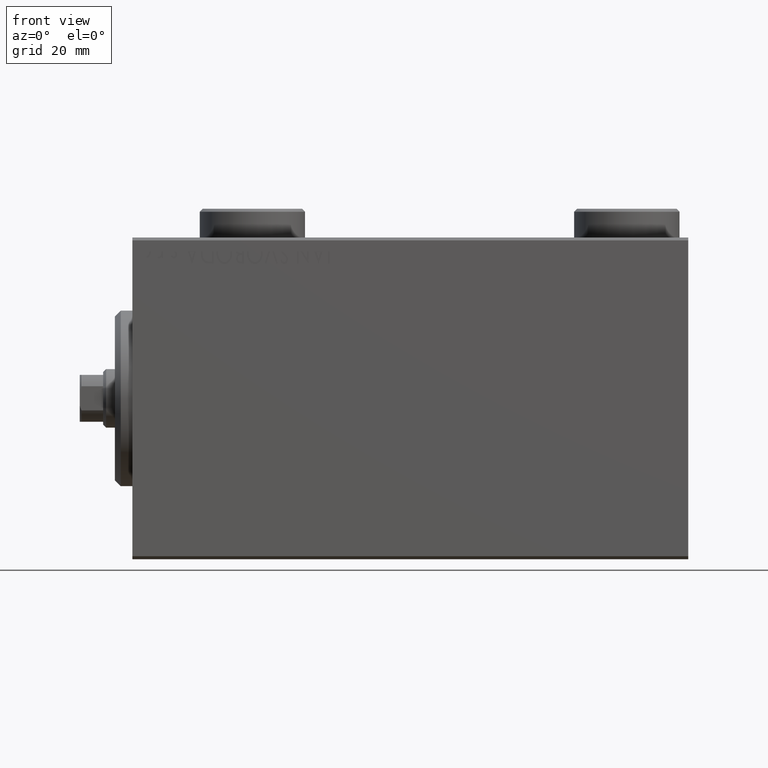
[diagram: clean part render]
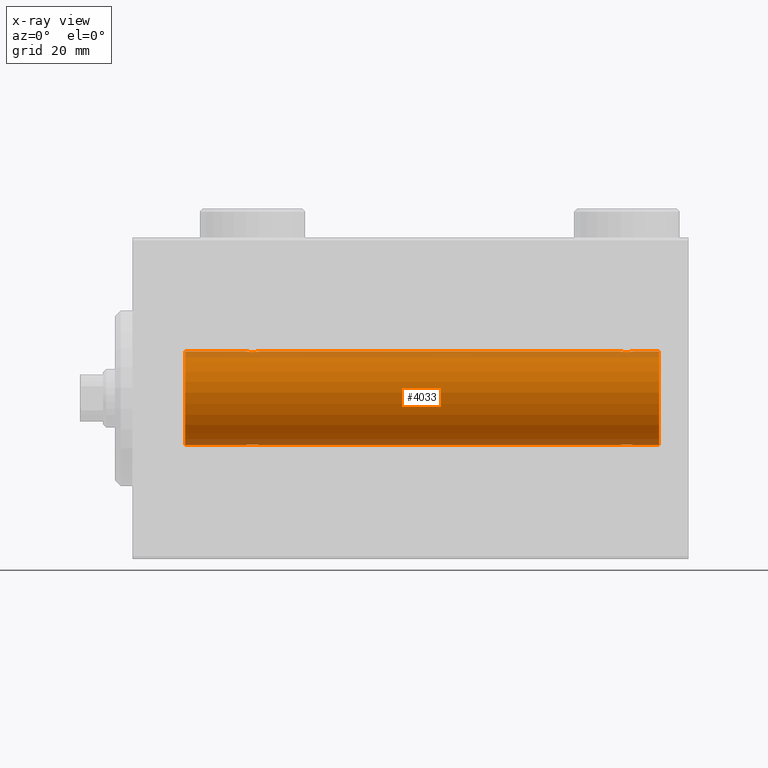
[diagram: x-ray — body ghosted, one internal face saturated and labeled with its STEP entity id]
A machine part, front view, then the same camera in x-ray: the body is ghosted and one INTERNAL B-rep face — a face not visible from any outside direction — is saturated and labeled: STEP entity #4033.
In plain terms, the highlighted cylindrical surface (partial cylindrical patch) has radius 8 mm, axis along (-1, -0, -0).
Its self-contained STEP definition (entity closure, byte-faithful):
#187 = CARTESIAN_POINT ( 'NONE',  ( 83.25000000000001421, -1.281062335743637805E-14, -7.999999999999998224 ) ) ;
#345 = DIRECTION ( 'NONE',  ( -1.000000000000000000, 0.000000000000000000, 0.000000000000000000 ) ) ;
#727 = DIRECTION ( 'NONE',  ( -1.000000000000000000, 0.000000000000000000, 0.000000000000000000 ) ) ;
#1006 = EDGE_CURVE ( 'NONE', #32986, #5718, #42432, .T. ) ;
#1489 = CARTESIAN_POINT ( 'NONE',  ( 83.25000000000001421, -4.052102368803510290E-23, 7.999999999999998224 ) ) ;
#1546 = CARTESIAN_POINT ( 'NONE',  ( 21.59250917855269591, -0.6288424646912638138, -7.976670562295706368 ) ) ;
#1599 = ORIENTED_EDGE ( 'NONE', *, *, #25995, .T. ) ;
#1867 = CARTESIAN_POINT ( 'NONE',  ( 20.66440551148902571, -1.250104850332074857, 7.901723728054485640 ) ) ;
#2011 = CARTESIAN_POINT ( 'NONE',  ( 20.17298283628253586, -1.217515856520240192, -7.907063872927300174 ) ) ;
#2559 = CARTESIAN_POINT ( 'NONE',  ( 19.25000000000000000, -4.052102368803510290E-23, 7.999999999999998224 ) ) ;
#2659 = CARTESIAN_POINT ( 'NONE',  ( 90.00000000000000000, 9.797174393178821713E-16, -7.999999999999998224 ) ) ;
#2743 = EDGE_LOOP ( 'NONE', ( #37913, #35891, #20205, #1599, #32810, #21557, #3420, #13287, #17884, #14188, #25471, #3619 ) ) ;
#3073 = CARTESIAN_POINT ( 'NONE',  ( 9.000000000000007105, 0.000000000000000000, 7.999999999999998224 ) ) ;
#3420 = ORIENTED_EDGE ( 'NONE', *, *, #1006, .T. ) ;
#3619 = ORIENTED_EDGE ( 'NONE', *, *, #12068, .F. ) ;
#3652 = CARTESIAN_POINT ( 'NONE',  ( 84.17298283628255717, -1.217515856520248185, -7.907063872927295733 ) ) ;
#4033 = ADVANCED_FACE ( 'NONE', ( #25387 ), #38941, .F. ) ;
#4158 = VECTOR ( 'NONE', #23268, 1000.000000000000000 ) ;
#4630 = LINE ( 'NONE', #36379, #45259 ) ;
#5454 = CARTESIAN_POINT ( 'NONE',  ( 20.33559448851097784, -1.250104850332075968, -7.901723728054487417 ) ) ;
#5718 = VERTEX_POINT ( 'NONE', #3073 ) ;
#6233 = CARTESIAN_POINT ( 'NONE',  ( 19.73732994206310565, -0.9937204387496724189, 7.938174152191988853 ) ) ;
#7106 = CARTESIAN_POINT ( 'NONE',  ( 84.33559448851100626, -1.250104850332087736, -7.901723728054487417 ) ) ;
#7322 = CARTESIAN_POINT ( 'NONE',  ( 83.73184514123552447, -0.9994562523959241718, -7.938165420771274405 ) ) ;
#7605 = VECTOR ( 'NONE', #9806, 1000.000000000000000 ) ;
#8388 = CARTESIAN_POINT ( 'NONE',  ( 85.49841755665747201, -0.7695044314719103884, 7.963745725343517101 ) ) ;
#8407 = LINE ( 'NONE', #22423, #18926 ) ;
#8681 = CIRCLE ( 'NONE', #38079, 7.999999999999998224 ) ;
#8703 = VERTEX_POINT ( 'NONE', #24737 ) ;
#8971 = CARTESIAN_POINT ( 'NONE',  ( 85.75000000000002842, -0.1632520343443080724, -8.000000000000000000 ) ) ;
#9547 = LINE ( 'NONE', #2659, #34250 ) ;
#9806 = DIRECTION ( 'NONE',  ( -1.000000000000000000, -0.000000000000000000, -0.000000000000000000 ) ) ;
#9824 = CARTESIAN_POINT ( 'NONE',  ( 19.28333392022814152, -0.3297258132310492140, -7.994620111903502746 ) ) ;
#10704 = VERTEX_POINT ( 'NONE', #1489 ) ;
#10823 = B_SPLINE_CURVE_WITH_KNOTS ( 'NONE', 3,
 ( #2559, #19340, #37748, #36839, #16590, #30628, #6233, #20254, #34305, #16817, #33383, #1867, #43967, #13808, #45338, #20922, #42317, #27851, #31517, #28291 ),
 .UNSPECIFIED., .F., .F.,
 ( 4, 2, 2, 2, 2, 2, 2, 2, 2, 4 ),
 ( 0.003914068143704996401, 0.004403205918210112424, 0.004892343692715227579, 0.005136912579967786024, 0.005381481467220344470, 0.005870619241725459625, 0.006359757016230574780, 0.006848894790735689936, 0.007338032565240806826, 0.007827170339745921981 ),
 .UNSPECIFIED. ) ;
#11138 = VERTEX_POINT ( 'NONE', #34108 ) ;
#11825 = CARTESIAN_POINT ( 'NONE',  ( 85.75000000000001421, 3.911328967333206588E-16, 7.999999999999998224 ) ) ;
#12068 = EDGE_CURVE ( 'NONE', #40015, #13301, #41451, .T. ) ;
#12087 = CARTESIAN_POINT ( 'NONE',  ( 90.00000000000000000, 9.797174393178821713E-16, -7.999999999999998224 ) ) ;
#12359 = CARTESIAN_POINT ( 'NONE',  ( 21.05544625654723845, -1.122809931695431862, -7.920878051565288125 ) ) ;
#12419 = CARTESIAN_POINT ( 'NONE',  ( 85.12714162834988940, -1.084361243153331822, -7.926301147147067461 ) ) ;
#12581 = CARTESIAN_POINT ( 'NONE',  ( 19.25000000000000711, -3.005725159293897818E-15, -7.999999999999998224 ) ) ;
#12646 = EDGE_CURVE ( 'NONE', #22246, #8703, #44772, .T. ) ;
#12738 = CARTESIAN_POINT ( 'NONE',  ( 85.12943792732231429, -1.092287957405120080, 7.925333492638530153 ) ) ;
#12923 = CARTESIAN_POINT ( 'NONE',  ( 9.000000000000007105, 9.797174393178821713E-16, -7.999999999999998224 ) ) ;
#13287 = ORIENTED_EDGE ( 'NONE', *, *, #42043, .F. ) ;
#13301 = VERTEX_POINT ( 'NONE', #28955 ) ;
#13808 = CARTESIAN_POINT ( 'NONE',  ( 21.12943792732230008, -1.092287957405117416, 7.925333492638531929 ) ) ;
#14188 = ORIENTED_EDGE ( 'NONE', *, *, #30277, .F. ) ;
#14382 = DIRECTION ( 'NONE',  ( 0.000000000000000000, 0.000000000000000000, 1.000000000000000000 ) ) ;
#14620 = CARTESIAN_POINT ( 'NONE',  ( 83.25000000000001421, -1.281062335743637805E-14, -7.999999999999998224 ) ) ;
#15358 = CARTESIAN_POINT ( 'NONE',  ( 20.66599605016009278, -1.249894643705219854, -7.901756981264364654 ) ) ;
#15507 = CARTESIAN_POINT ( 'NONE',  ( 83.25000000000002842, -0.1632520343443087940, 8.000000000000000000 ) ) ;
#15579 = CARTESIAN_POINT ( 'NONE',  ( 21.75000000000000355, 9.797173987965608855E-16, -7.999999999999998224 ) ) ;
#16048 = CARTESIAN_POINT ( 'NONE',  ( 19.73184514123549604, -0.9994562523959141798, -7.938165420771276182 ) ) ;
#16380 = DIRECTION ( 'NONE',  ( -1.000000000000000000, -0.000000000000000000, -0.000000000000000000 ) ) ;
#16504 = CARTESIAN_POINT ( 'NONE',  ( 19.50158244334252444, -0.7695044314719095002, -7.963745725343515325 ) ) ;
#16590 = CARTESIAN_POINT ( 'NONE',  ( 19.50041313324086900, -0.7680324342712184782, 7.963892330120037499 ) ) ;
#16737 = CARTESIAN_POINT ( 'NONE',  ( 19.25000000000000355, -0.1654128203352905058, -8.000000000000000000 ) ) ;
#16817 = CARTESIAN_POINT ( 'NONE',  ( 20.17169333885885862, -1.217212176555599212, 7.907113222863028312 ) ) ;
#17884 = ORIENTED_EDGE ( 'NONE', *, *, #39741, .T. ) ;
#18414 = AXIS2_PLACEMENT_3D ( 'NONE', #39405, #39857, #42624 ) ;
#18926 = VECTOR ( 'NONE', #28551, 1000.000000000000000 ) ;
#19340 = CARTESIAN_POINT ( 'NONE',  ( 19.25000000000000355, -0.1632520343443084887, 7.999999999999996447 ) ) ;
#19673 = AXIS2_PLACEMENT_3D ( 'NONE', #32253, #727, #42833 ) ;
#19917 = LINE ( 'NONE', #27302, #7605 ) ;
#20205 = ORIENTED_EDGE ( 'NONE', *, *, #43866, .T. ) ;
#20233 = CARTESIAN_POINT ( 'NONE',  ( 85.26267005793692988, -0.9937204387496844094, -7.938174152191990629 ) ) ;
#20254 = CARTESIAN_POINT ( 'NONE',  ( 19.87285837165014968, -1.084361243153318943, 7.926301147147065684 ) ) ;
#20720 = CARTESIAN_POINT ( 'NONE',  ( 90.00000000000000000, 0.000000000000000000, 7.999999999999998224 ) ) ;
#20905 = CARTESIAN_POINT ( 'NONE',  ( 83.87056207267774255, -1.092287957405127408, -7.925333492638528377 ) ) ;
#20922 = CARTESIAN_POINT ( 'NONE',  ( 21.49841755665747911, -0.7695044314719062806, 7.963745725343515325 ) ) ;
#20972 = CARTESIAN_POINT ( 'NONE',  ( 19.25000000000000000, -4.052102368803510290E-23, 7.999999999999998224 ) ) ;
#21557 = ORIENTED_EDGE ( 'NONE', *, *, #27273, .T. ) ;
#22246 = VERTEX_POINT ( 'NONE', #45221 ) ;
#22252 = CARTESIAN_POINT ( 'NONE',  ( 21.71715712019487299, -0.3279446529214868344, -7.994696267489722175 ) ) ;
#22406 = CARTESIAN_POINT ( 'NONE',  ( 83.94455374345278642, -1.122809931695436525, 7.920878051565288125 ) ) ;
#22423 = CARTESIAN_POINT ( 'NONE',  ( 90.00000000000000000, 0.000000000000000000, 7.999999999999998224 ) ) ;
#22731 = CARTESIAN_POINT ( 'NONE',  ( 90.00000000000000000, 0.000000000000000000, 7.999999999999998224 ) ) ;
#22851 = CARTESIAN_POINT ( 'NONE',  ( 83.28284287980511635, -0.3279446529214926076, 7.994696267489720398 ) ) ;
#22930 = CARTESIAN_POINT ( 'NONE',  ( 20.82830666114115559, -1.217212176555599656, -7.907113222863030089 ) ) ;
#22994 = CARTESIAN_POINT ( 'NONE',  ( 85.32687899779146790, -0.9409612394163503479, -7.944680966683013601 ) ) ;
#23268 = DIRECTION ( 'NONE',  ( -1.000000000000000000, -0.000000000000000000, -0.000000000000000000 ) ) ;
#23320 = CARTESIAN_POINT ( 'NONE',  ( 84.17169333885888705, -1.217212176555603431, 7.907113222863028312 ) ) ;
#24150 = CARTESIAN_POINT ( 'NONE',  ( 83.40834966532099770, -0.6303134207468096273, -7.976551562999471656 ) ) ;
#24737 = CARTESIAN_POINT ( 'NONE',  ( 19.25000000000000711, -3.005725159293897818E-15, -7.999999999999998224 ) ) ;
#25367 = VERTEX_POINT ( 'NONE', #12087 ) ;
#25387 = FACE_OUTER_BOUND ( 'NONE', #2743, .T. ) ;
#25471 = ORIENTED_EDGE ( 'NONE', *, *, #36609, .T. ) ;
#25516 = EDGE_CURVE ( 'NONE', #25367, #40403, #9547, .T. ) ;
#25872 = CARTESIAN_POINT ( 'NONE',  ( 85.71666607977185492, -0.3297258132310503798, 7.994620111903502746 ) ) ;
#25950 = CARTESIAN_POINT ( 'NONE',  ( 21.32687899779140750, -0.9409612394163507920, -7.944680966683015377 ) ) ;
#25995 = EDGE_CURVE ( 'NONE', #43027, #22246, #4630, .T. ) ;
#26459 = CARTESIAN_POINT ( 'NONE',  ( 84.82830666114118401, -1.217212176555607872, -7.907113222863028312 ) ) ;
#26786 = CARTESIAN_POINT ( 'NONE',  ( 85.59165033467900230, -0.6303134207467984140, 7.976551562999471656 ) ) ;
#26929 = CARTESIAN_POINT ( 'NONE',  ( 85.71715712019491207, -0.3279446529214858908, -7.994696267489723951 ) ) ;
#27273 = EDGE_CURVE ( 'NONE', #8703, #32986, #44681, .T. ) ;
#27302 = CARTESIAN_POINT ( 'NONE',  ( 90.00000000000000000, 0.000000000000000000, 7.999999999999998224 ) ) ;
#27502 = DIRECTION ( 'NONE',  ( -1.000000000000000000, -0.000000000000000000, -0.000000000000000000 ) ) ;
#27851 = CARTESIAN_POINT ( 'NONE',  ( 21.71666607977186914, -0.3297258132310459389, 7.994620111903502746 ) ) ;
#28049 = CARTESIAN_POINT ( 'NONE',  ( 83.28333392022817350, -0.3297258132310616485, -7.994620111903504522 ) ) ;
#28291 = CARTESIAN_POINT ( 'NONE',  ( 21.75000000000000355, 3.487662501604947668E-15, 7.999999999999998224 ) ) ;
#28551 = DIRECTION ( 'NONE',  ( -1.000000000000000000, -0.000000000000000000, -0.000000000000000000 ) ) ;
#28955 = CARTESIAN_POINT ( 'NONE',  ( 85.75000000000001421, 3.911328967333206588E-16, 7.999999999999998224 ) ) ;
#29399 = CARTESIAN_POINT ( 'NONE',  ( 19.87056207267771413, -1.092287957405119192, -7.925333492638526600 ) ) ;
#29552 = CARTESIAN_POINT ( 'NONE',  ( 83.87285837165021007, -1.084361243153323828, 7.926301147147069237 ) ) ;
#29622 = B_SPLINE_CURVE_WITH_KNOTS ( 'NONE', 3,
 ( #40122, #15507, #22851, #43807, #36459, #30235, #44264, #29552, #22406, #23320, #43577, #32777, #44030, #12738, #39893, #8388, #26786, #25872, #37359, #11825 ),
 .UNSPECIFIED., .F., .F.,
 ( 4, 2, 2, 2, 2, 2, 2, 2, 2, 4 ),
 ( 0.003914068143704953900, 0.004403205918210113291, 0.004892343692715272682, 0.005136912579967838066, 0.005381481467220402583, 0.005870619241725494319, 0.006359757016230586923, 0.006848894790735679527, 0.007338032565240771264, 0.007827170339745863001 ),
 .UNSPECIFIED. ) ;
#29921 = CARTESIAN_POINT ( 'NONE',  ( 85.75000000000001421, 9.797173987969553159E-16, -7.999999999999998224 ) ) ;
#30085 = CARTESIAN_POINT ( 'NONE',  ( 19.40834966532099415, -0.6303134207467953054, -7.976551562999473433 ) ) ;
#30235 = CARTESIAN_POINT ( 'NONE',  ( 83.67312100220861737, -0.9409612394163542337, 7.944680966683010936 ) ) ;
#30277 = EDGE_CURVE ( 'NONE', #10704, #11138, #8407, .T. ) ;
#30628 = CARTESIAN_POINT ( 'NONE',  ( 19.67312100220859605, -0.9409612394163519022, 7.944680966683015377 ) ) ;
#31036 = VECTOR ( 'NONE', #16380, 1000.000000000000000 ) ;
#31500 = CARTESIAN_POINT ( 'NONE',  ( 84.66599605016014607, -1.249894643705230513, -7.901756981264362878 ) ) ;
#31517 = CARTESIAN_POINT ( 'NONE',  ( 21.75000000000001776, -0.1654128203352905613, 8.000000000000000000 ) ) ;
#31872 = CARTESIAN_POINT ( 'NONE',  ( 90.00000000000000000, 0.000000000000000000, 0.000000000000000000 ) ) ;
#32253 = CARTESIAN_POINT ( 'NONE',  ( 9.000000000000007105, 0.000000000000000000, 0.000000000000000000 ) ) ;
#32423 = EDGE_CURVE ( 'NONE', #25367, #40015, #8681, .T. ) ;
#32777 = CARTESIAN_POINT ( 'NONE',  ( 84.66440551148903637, -1.250104850332079520, 7.901723728054485640 ) ) ;
#32810 = ORIENTED_EDGE ( 'NONE', *, *, #12646, .T. ) ;
#32845 = CARTESIAN_POINT ( 'NONE',  ( 21.12714162834985387, -1.084361243153318943, -7.926301147147063908 ) ) ;
#32986 = VERTEX_POINT ( 'NONE', #12923 ) ;
#33141 = DIRECTION ( 'NONE',  ( -1.000000000000000000, -0.000000000000000000, -0.000000000000000000 ) ) ;
#33297 = CARTESIAN_POINT ( 'NONE',  ( 21.75000000000000355, -0.1632520343443067123, -8.000000000000000000 ) ) ;
#33383 = CARTESIAN_POINT ( 'NONE',  ( 20.33400394983991788, -1.249894643705220076, 7.901756981264366431 ) ) ;
#34108 = CARTESIAN_POINT ( 'NONE',  ( 21.75000000000000355, 3.487662501604947668E-15, 7.999999999999998224 ) ) ;
#34250 = VECTOR ( 'NONE', #27502, 1000.000000000000000 ) ;
#34283 = CARTESIAN_POINT ( 'NONE',  ( 85.05544625654725621, -1.122809931695437857, -7.920878051565288125 ) ) ;
#34305 = CARTESIAN_POINT ( 'NONE',  ( 19.94455374345276510, -1.122809931695431640, 7.920878051565289901 ) ) ;
#34527 = CARTESIAN_POINT ( 'NONE',  ( 85.75000000000001421, 9.797173987969553159E-16, -7.999999999999998224 ) ) ;
#35891 = ORIENTED_EDGE ( 'NONE', *, *, #25516, .T. ) ;
#36305 = CARTESIAN_POINT ( 'NONE',  ( 21.49958686675913100, -0.7680324342712171459, -7.963892330120037499 ) ) ;
#36379 = CARTESIAN_POINT ( 'NONE',  ( 90.00000000000000000, 9.797174393178821713E-16, -7.999999999999998224 ) ) ;
#36459 = CARTESIAN_POINT ( 'NONE',  ( 83.50041313324088321, -0.7680324342712208097, 7.963892330120035723 ) ) ;
#36609 = EDGE_CURVE ( 'NONE', #10704, #13301, #29622, .T. ) ;
#36839 = CARTESIAN_POINT ( 'NONE',  ( 19.40749082144729698, -0.6288424646912655902, 7.976670562295706368 ) ) ;
#37359 = CARTESIAN_POINT ( 'NONE',  ( 85.75000000000000000, -0.1654128203352892290, 7.999999999999998224 ) ) ;
#37725 = CARTESIAN_POINT ( 'NONE',  ( 85.59250917855273144, -0.6288424646912652571, -7.976670562295706368 ) ) ;
#37748 = CARTESIAN_POINT ( 'NONE',  ( 19.28284287980511991, -0.3279446529214884443, 7.994696267489723951 ) ) ;
#37913 = ORIENTED_EDGE ( 'NONE', *, *, #32423, .F. ) ;
#38079 = AXIS2_PLACEMENT_3D ( 'NONE', #31872, #345, #14382 ) ;
#38214 = CARTESIAN_POINT ( 'NONE',  ( 90.00000000000000000, 9.797174393178821713E-16, -7.999999999999998224 ) ) ;
#38700 = VERTEX_POINT ( 'NONE', #20972 ) ;
#38838 = CARTESIAN_POINT ( 'NONE',  ( 83.25000000000000000, -0.1654128203353024129, -8.000000000000001776 ) ) ;
#38941 = CYLINDRICAL_SURFACE ( 'NONE', #18414, 7.999999999999998224 ) ;
#39405 = CARTESIAN_POINT ( 'NONE',  ( 90.00000000000000000, 0.000000000000000000, 0.000000000000000000 ) ) ;
#39741 = EDGE_CURVE ( 'NONE', #38700, #11138, #10823, .T. ) ;
#39857 = DIRECTION ( 'NONE',  ( -1.000000000000000000, -0.000000000000000000, -0.000000000000000000 ) ) ;
#39893 = CARTESIAN_POINT ( 'NONE',  ( 85.26815485876457501, -0.9994562523959159561, 7.938165420771274405 ) ) ;
#40015 = VERTEX_POINT ( 'NONE', #22731 ) ;
#40122 = CARTESIAN_POINT ( 'NONE',  ( 83.25000000000001421, -4.052102368803510290E-23, 7.999999999999998224 ) ) ;
#40403 = VERTEX_POINT ( 'NONE', #34527 ) ;
#41207 = B_SPLINE_CURVE_WITH_KNOTS ( 'NONE', 3,
 ( #29921, #8971, #26929, #37725, #43946, #22994, #20233, #12419, #34283, #26459, #31500, #7106, #3652, #20905, #7322, #42070, #24150, #28049, #38838, #187 ),
 .UNSPECIFIED., .F., .F.,
 ( 4, 2, 2, 2, 2, 2, 2, 2, 2, 4 ),
 ( 0.003914068143704947829, 0.004403205918210037831, 0.004892343692715126965, 0.005136912579967671533, 0.005381481467220216967, 0.005870619241725345133, 0.006359757016230473299, 0.006848894790735601465, 0.007338032565240729631, 0.007827170339745857797 ),
 .UNSPECIFIED. ) ;
#41451 = LINE ( 'NONE', #20720, #31036 ) ;
#42043 = EDGE_CURVE ( 'NONE', #38700, #5718, #19917, .T. ) ;
#42070 = CARTESIAN_POINT ( 'NONE',  ( 83.50158244334251378, -0.7695044314719187151, -7.963745725343513548 ) ) ;
#42317 = CARTESIAN_POINT ( 'NONE',  ( 21.59165033467900585, -0.6303134207467925298, 7.976551562999473433 ) ) ;
#42432 = CIRCLE ( 'NONE', #19673, 7.999999999999998224 ) ;
#42624 = DIRECTION ( 'NONE',  ( 0.000000000000000000, 0.000000000000000000, 1.000000000000000000 ) ) ;
#42833 = DIRECTION ( 'NONE',  ( 0.000000000000000000, 0.000000000000000000, 1.000000000000000000 ) ) ;
#43027 = VERTEX_POINT ( 'NONE', #14620 ) ;
#43577 = CARTESIAN_POINT ( 'NONE',  ( 84.33400394983991077, -1.249894643705222519, 7.901756981264366431 ) ) ;
#43807 = CARTESIAN_POINT ( 'NONE',  ( 83.40749082144732540, -0.6288424646912691429, 7.976670562295706368 ) ) ;
#43866 = EDGE_CURVE ( 'NONE', #40403, #43027, #41207, .T. ) ;
#43883 = CARTESIAN_POINT ( 'NONE',  ( 21.26267005793691212, -0.9937204387496726410, -7.938174152191994182 ) ) ;
#43946 = CARTESIAN_POINT ( 'NONE',  ( 85.49958686675914521, -0.7680324342712143704, -7.963892330120037499 ) ) ;
#43967 = CARTESIAN_POINT ( 'NONE',  ( 20.82701716371746414, -1.217515856520238415, 7.907063872927300174 ) ) ;
#44030 = CARTESIAN_POINT ( 'NONE',  ( 84.82701716371745704, -1.217515856520240192, 7.907063872927293957 ) ) ;
#44264 = CARTESIAN_POINT ( 'NONE',  ( 83.73732994206314117, -0.9937204387496767488, 7.938174152191988853 ) ) ;
#44681 = LINE ( 'NONE', #38214, #4158 ) ;
#44772 = B_SPLINE_CURVE_WITH_KNOTS ( 'NONE', 3,
 ( #15579, #33297, #22252, #1546, #36305, #25950, #43883, #32845, #12359, #22930, #15358, #5454, #2011, #29399, #16048, #16504, #30085, #9824, #16737, #12581 ),
 .UNSPECIFIED., .F., .F.,
 ( 4, 2, 2, 2, 2, 2, 2, 2, 2, 4 ),
 ( 0.003914068143704948696, 0.004403205918210059515, 0.004892343692715170334, 0.005136912579967721840, 0.005381481467220274213, 0.005870619241725386767, 0.006359757016230500187, 0.006848894790735613608, 0.007338032565240725294, 0.007827170339745838715 ),
 .UNSPECIFIED. ) ;
#45221 = CARTESIAN_POINT ( 'NONE',  ( 21.75000000000000355, 9.797173987965608855E-16, -7.999999999999998224 ) ) ;
#45259 = VECTOR ( 'NONE', #33141, 1000.000000000000000 ) ;
#45338 = CARTESIAN_POINT ( 'NONE',  ( 21.26815485876451461, -0.9994562523959111822, 7.938165420771274405 ) ) ;